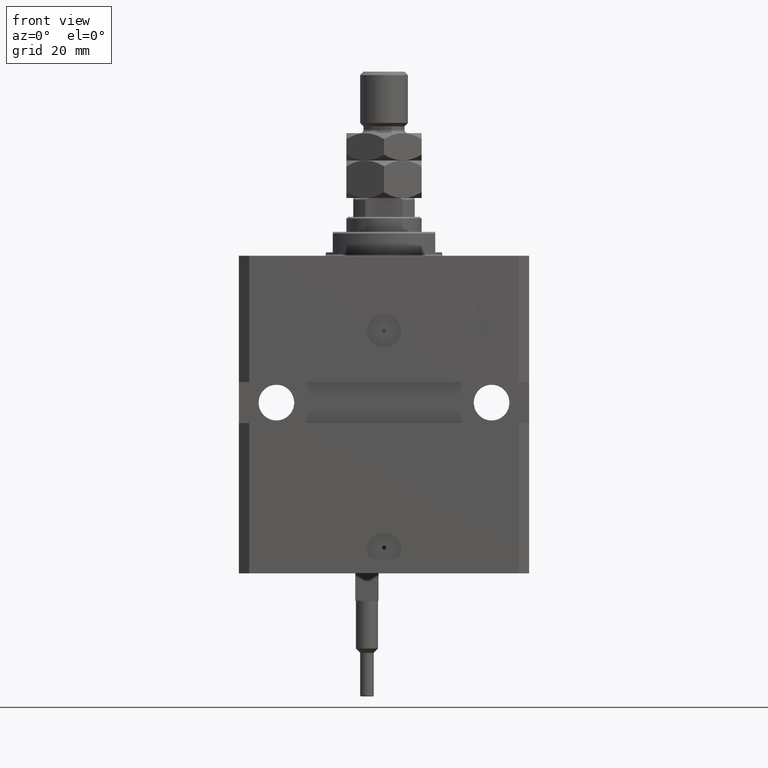
[diagram: clean part render]
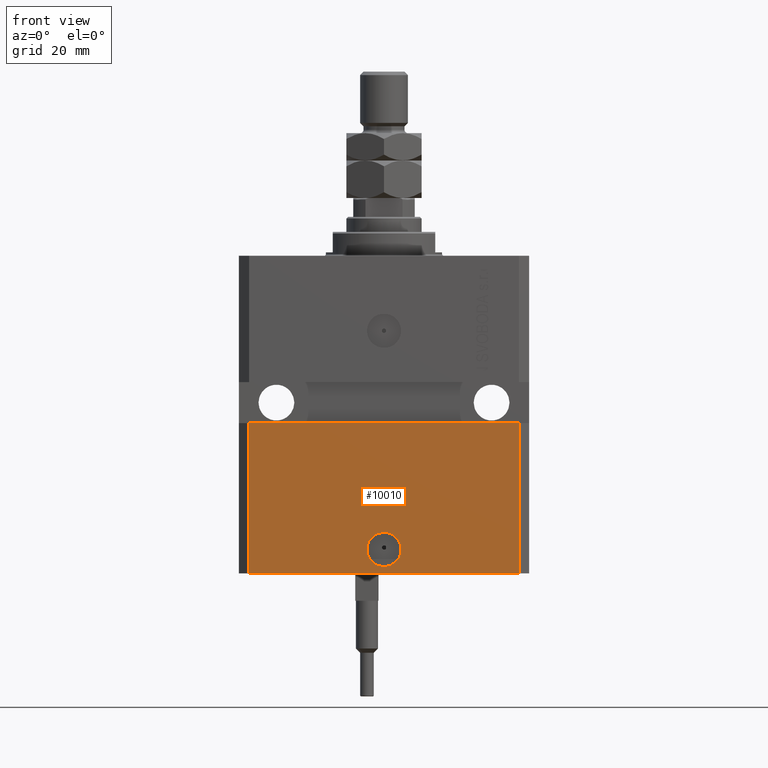
[diagram: same view with one face highlighted and labeled with its STEP entity id]
A machine part, front view. The second image highlights one B-rep face of the part: STEP entity #10010.
In plain terms, the highlighted planar face has unit normal (0, -1, 0).
Its self-contained STEP definition (entity closure, byte-faithful):
#1431 = ORIENTED_EDGE ( 'NONE', *, *, #45635, .T. ) ;
#1460 = DIRECTION ( 'NONE',  ( 0.000000000000000000, 0.000000000000000000, 1.000000000000000000 ) ) ;
#1544 = LINE ( 'NONE', #21459, #21644 ) ;
#1997 = CARTESIAN_POINT ( 'NONE',  ( 39.50000000000000711, -31.50000000000000000, -93.00000000000000000 ) ) ;
#2318 = EDGE_CURVE ( 'NONE', #39101, #21913, #19912, .T. ) ;
#2835 = LINE ( 'NONE', #27047, #34448 ) ;
#3141 = EDGE_CURVE ( 'NONE', #39101, #19671, #1544, .T. ) ;
#5785 = DIRECTION ( 'NONE',  ( 1.000000000000000000, 0.000000000000000000, 0.000000000000000000 ) ) ;
#6744 = DIRECTION ( 'NONE',  ( 0.000000000000000000, -1.000000000000000000, 0.000000000000000000 ) ) ;
#7434 = DIRECTION ( 'NONE',  ( 1.000000000000000000, 0.000000000000000000, 0.000000000000000000 ) ) ;
#8422 = AXIS2_PLACEMENT_3D ( 'NONE', #45168, #6744, #10790 ) ;
#10010 = ADVANCED_FACE ( 'NONE', ( #42359, #22871 ), #29720, .T. ) ;
#10254 = EDGE_CURVE ( 'NONE', #11068, #46630, #14856, .T. ) ;
#10517 = CARTESIAN_POINT ( 'NONE',  ( 5.000000000000006217, -31.50000000000000000, -86.00000000000000000 ) ) ;
#10790 = DIRECTION ( 'NONE',  ( 0.000000000000000000, -0.000000000000000000, -1.000000000000000000 ) ) ;
#11068 = VERTEX_POINT ( 'NONE', #10517 ) ;
#11614 = CARTESIAN_POINT ( 'NONE',  ( -39.50000000000000711, -31.50000000000000000, -93.00000000000000000 ) ) ;
#12457 = ORIENTED_EDGE ( 'NONE', *, *, #18489, .F. ) ;
#13553 = LINE ( 'NONE', #37056, #35833 ) ;
#14192 = CARTESIAN_POINT ( 'NONE',  ( -39.50000000000000711, -31.50000000000000000, -93.00000000000000000 ) ) ;
#14856 = CIRCLE ( 'NONE', #22145, 5.000000000000006217 ) ;
#15160 = VECTOR ( 'NONE', #42451, 1000.000000000000000 ) ;
#16160 = CARTESIAN_POINT ( 'NONE',  ( -5.000000000000006217, -31.50000000000000000, -86.00000000000000000 ) ) ;
#18489 = EDGE_CURVE ( 'NONE', #21913, #35355, #2835, .T. ) ;
#18794 = AXIS2_PLACEMENT_3D ( 'NONE', #37107, #33301, #5785 ) ;
#19294 = EDGE_LOOP ( 'NONE', ( #12457, #36392, #34991, #1431 ) ) ;
#19671 = VERTEX_POINT ( 'NONE', #1997 ) ;
#19912 = LINE ( 'NONE', #11614, #15160 ) ;
#21459 = CARTESIAN_POINT ( 'NONE',  ( -39.50000000000000711, -31.50000000000000000, -93.00000000000000000 ) ) ;
#21644 = VECTOR ( 'NONE', #24753, 1000.000000000000000 ) ;
#21913 = VERTEX_POINT ( 'NONE', #42017 ) ;
#22003 = DIRECTION ( 'NONE',  ( 1.000000000000000000, 1.632680918566406300E-16, 0.000000000000000000 ) ) ;
#22145 = AXIS2_PLACEMENT_3D ( 'NONE', #49152, #41813, #7434 ) ;
#22251 = CARTESIAN_POINT ( 'NONE',  ( 39.50000000000001421, -31.49999999999999289, -48.99999999999999289 ) ) ;
#22871 = FACE_OUTER_BOUND ( 'NONE', #19294, .T. ) ;
#24753 = DIRECTION ( 'NONE',  ( 1.000000000000000000, 0.000000000000000000, 0.000000000000000000 ) ) ;
#27047 = CARTESIAN_POINT ( 'NONE',  ( -42.50000000000000000, -31.50000000000000711, -48.99999999999999289 ) ) ;
#29720 = PLANE ( 'NONE',  #8422 ) ;
#33301 = DIRECTION ( 'NONE',  ( 1.176083712526788232E-16, -1.000000000000000000, 0.000000000000000000 ) ) ;
#34152 = CIRCLE ( 'NONE', #18794, 5.000000000000006217 ) ;
#34448 = VECTOR ( 'NONE', #22003, 1000.000000000000000 ) ;
#34991 = ORIENTED_EDGE ( 'NONE', *, *, #3141, .T. ) ;
#35355 = VERTEX_POINT ( 'NONE', #22251 ) ;
#35833 = VECTOR ( 'NONE', #1460, 1000.000000000000000 ) ;
#36392 = ORIENTED_EDGE ( 'NONE', *, *, #2318, .F. ) ;
#37056 = CARTESIAN_POINT ( 'NONE',  ( 39.50000000000000711, -31.50000000000000000, -93.00000000000000000 ) ) ;
#37107 = CARTESIAN_POINT ( 'NONE',  ( 0.000000000000000000, -31.50000000000000000, -86.00000000000000000 ) ) ;
#39101 = VERTEX_POINT ( 'NONE', #14192 ) ;
#39463 = ORIENTED_EDGE ( 'NONE', *, *, #44291, .F. ) ;
#40195 = ORIENTED_EDGE ( 'NONE', *, *, #10254, .F. ) ;
#41043 = EDGE_LOOP ( 'NONE', ( #40195, #39463 ) ) ;
#41813 = DIRECTION ( 'NONE',  ( 1.176083712526788232E-16, -1.000000000000000000, 0.000000000000000000 ) ) ;
#42017 = CARTESIAN_POINT ( 'NONE',  ( -39.50000000000000000, -31.50000000000000711, -48.99999999999999289 ) ) ;
#42359 = FACE_BOUND ( 'NONE', #41043, .T. ) ;
#42451 = DIRECTION ( 'NONE',  ( 0.000000000000000000, 0.000000000000000000, 1.000000000000000000 ) ) ;
#44291 = EDGE_CURVE ( 'NONE', #46630, #11068, #34152, .T. ) ;
#45168 = CARTESIAN_POINT ( 'NONE',  ( -39.50000000000000711, -31.50000000000000000, -93.00000000000000000 ) ) ;
#45635 = EDGE_CURVE ( 'NONE', #19671, #35355, #13553, .T. ) ;
#46630 = VERTEX_POINT ( 'NONE', #16160 ) ;
#49152 = CARTESIAN_POINT ( 'NONE',  ( 0.000000000000000000, -31.50000000000000000, -86.00000000000000000 ) ) ;